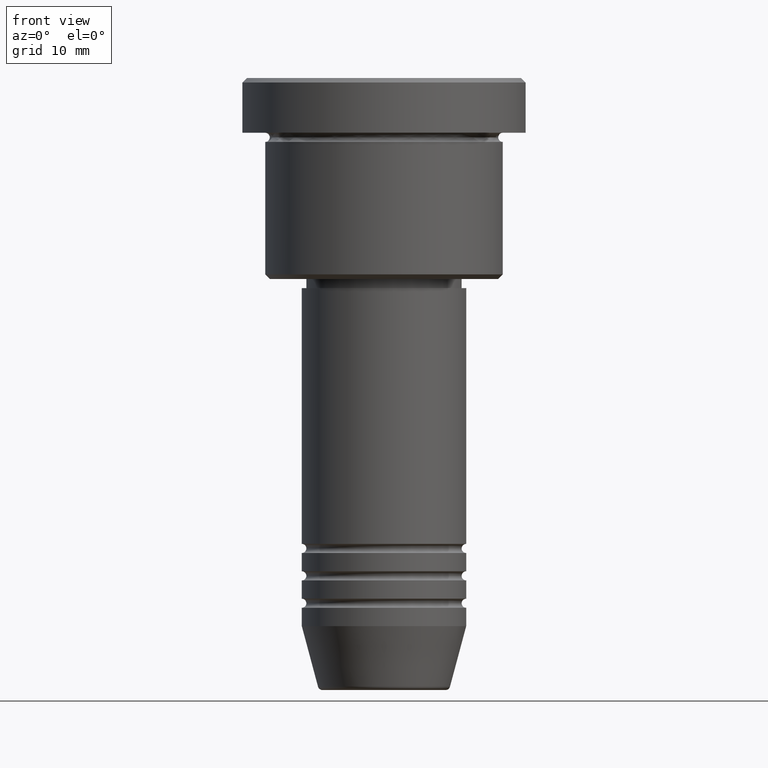
[diagram: clean part render]
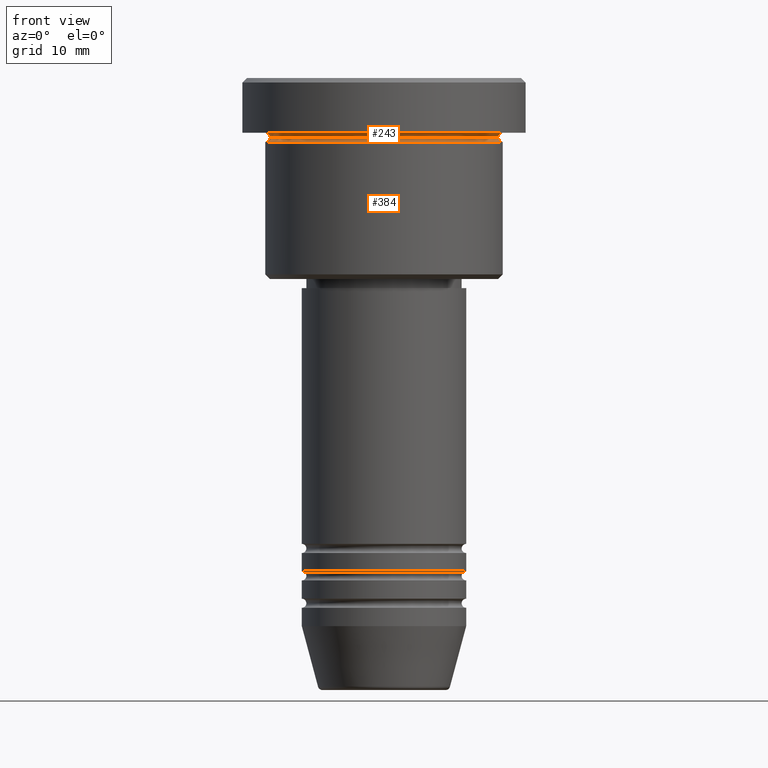
[diagram: same view with one multi-face feature highlighted, each face labeled with its STEP entity id]
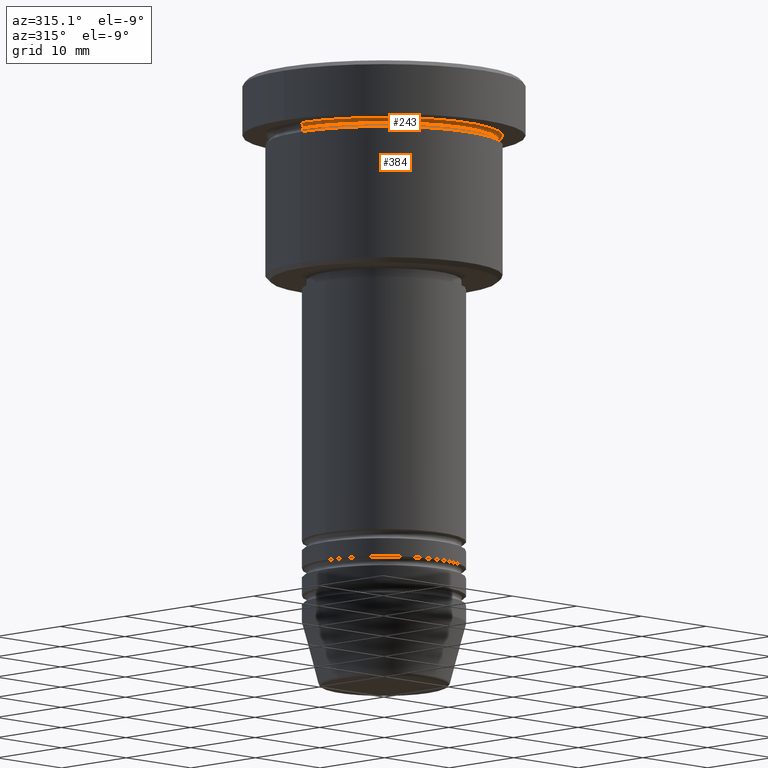
[diagram: same view with one multi-face feature highlighted, each face labeled with its STEP entity id]
A machine part, front view. The highlighted faces form ONE feature: a constant-radius fillet chain: 2 tangent blend faces with common blend radius 0.5 mm. The faces share edges in the B-rep.
A second angle (auxiliary view) of the same feature is appended — it is thin or edge-on in the first view.
Their STEP definitions:
[1] entity #243 (Torus):
#10 = CARTESIAN_POINT ( 'NONE',  ( 0.000000000000000000, 0.000000000000000000, -6.499999999999995559 ) ) ;
#21 = VERTEX_POINT ( 'NONE', #491 ) ;
#52 = AXIS2_PLACEMENT_3D ( 'NONE', #165, #79, #621 ) ;
#69 = FACE_OUTER_BOUND ( 'NONE', #612, .T. ) ;
#79 = DIRECTION ( 'NONE',  ( -0.000000000000000000, -0.000000000000000000, 1.000000000000000000 ) ) ;
#94 = CARTESIAN_POINT ( 'NONE',  ( 13.00000000000000000, 1.592040838891559095E-15, -5.999999999999994671 ) ) ;
#106 = DIRECTION ( 'NONE',  ( -1.000000000000000000, -1.224646799147353454E-16, 0.000000000000000000 ) ) ;
#165 = CARTESIAN_POINT ( 'NONE',  ( 0.000000000000000000, 0.000000000000000000, -5.999999999999995559 ) ) ;
#223 = CARTESIAN_POINT ( 'NONE',  ( -13.00000000000000000, 0.000000000000000000, -5.999999999999994671 ) ) ;
#243 = ADVANCED_FACE ( 'NONE', ( #69 ), #849, .F. ) ;
#325 = EDGE_CURVE ( 'NONE', #21, #839, #1113, .T. ) ;
#371 = DIRECTION ( 'NONE',  ( -0.000000000000000000, -0.000000000000000000, 1.000000000000000000 ) ) ;
#391 = CIRCLE ( 'NONE', #675, 12.49999999999999822 ) ;
#417 = EDGE_CURVE ( 'NONE', #928, #21, #391, .T. ) ;
#473 = ORIENTED_EDGE ( 'NONE', *, *, #724, .F. ) ;
#491 = CARTESIAN_POINT ( 'NONE',  ( 12.49999999999999822, 0.000000000000000000, -6.499999999999995559 ) ) ;
#534 = CARTESIAN_POINT ( 'NONE',  ( 0.000000000000000000, 0.000000000000000000, -6.499999999999995559 ) ) ;
#561 = AXIS2_PLACEMENT_3D ( 'NONE', #1105, #847, #106 ) ;
#610 = DIRECTION ( 'NONE',  ( 0.000000000000000000, 0.000000000000000000, -1.000000000000000000 ) ) ;
#611 = ORIENTED_EDGE ( 'NONE', *, *, #417, .T. ) ;
#612 = EDGE_LOOP ( 'NONE', ( #611, #1057, #887, #473 ) ) ;
#621 = DIRECTION ( 'NONE',  ( -1.000000000000000000, 0.000000000000000000, 0.000000000000000000 ) ) ;
#675 = AXIS2_PLACEMENT_3D ( 'NONE', #10, #371, #1045 ) ;
#705 = DIRECTION ( 'NONE',  ( -0.000000000000000000, -1.000000000000000000, -0.000000000000000000 ) ) ;
#724 = EDGE_CURVE ( 'NONE', #928, #956, #1040, .T. ) ;
#739 = EDGE_CURVE ( 'NONE', #956, #839, #1017, .T. ) ;
#839 = VERTEX_POINT ( 'NONE', #94 ) ;
#847 = DIRECTION ( 'NONE',  ( -1.224646799147353207E-16, 1.000000000000000000, 0.000000000000000000 ) ) ;
#849 = TOROIDAL_SURFACE ( 'NONE', #932, 13.00000000000000000, 0.5000000000000000000 ) ;
#887 = ORIENTED_EDGE ( 'NONE', *, *, #739, .F. ) ;
#903 = DIRECTION ( 'NONE',  ( -1.000000000000000000, 0.000000000000000000, 0.000000000000000000 ) ) ;
#928 = VERTEX_POINT ( 'NONE', #1115 ) ;
#932 = AXIS2_PLACEMENT_3D ( 'NONE', #534, #989, #903 ) ;
#956 = VERTEX_POINT ( 'NONE', #223 ) ;
#989 = DIRECTION ( 'NONE',  ( 0.000000000000000000, 0.000000000000000000, -1.000000000000000000 ) ) ;
#1004 = AXIS2_PLACEMENT_3D ( 'NONE', #1166, #705, #610 ) ;
#1017 = CIRCLE ( 'NONE', #52, 13.00000000000000000 ) ;
#1040 = CIRCLE ( 'NONE', #1004, 0.5000000000000004441 ) ;
#1045 = DIRECTION ( 'NONE',  ( 1.000000000000000000, 0.000000000000000000, 0.000000000000000000 ) ) ;
#1057 = ORIENTED_EDGE ( 'NONE', *, *, #325, .T. ) ;
#1105 = CARTESIAN_POINT ( 'NONE',  ( 13.00000000000000000, 1.592040838891559095E-15, -6.499999999999995559 ) ) ;
#1113 = CIRCLE ( 'NONE', #561, 0.5000000000000004441 ) ;
#1115 = CARTESIAN_POINT ( 'NONE',  ( -12.49999999999999822, 1.561424668912875308E-15, -6.499999999999995559 ) ) ;
#1166 = CARTESIAN_POINT ( 'NONE',  ( -13.00000000000000000, 0.000000000000000000, -6.499999999999995559 ) ) ;
[2] entity #384 (Torus):
#10 = CARTESIAN_POINT ( 'NONE',  ( 0.000000000000000000, 0.000000000000000000, -6.499999999999995559 ) ) ;
#21 = VERTEX_POINT ( 'NONE', #491 ) ;
#29 = CARTESIAN_POINT ( 'NONE',  ( 13.00000000000000000, 0.000000000000000000, -6.499999999999995559 ) ) ;
#38 = CARTESIAN_POINT ( 'NONE',  ( 13.00000000000000000, 0.000000000000000000, -6.999999999999995559 ) ) ;
#132 = DIRECTION ( 'NONE',  ( 0.000000000000000000, 0.000000000000000000, -1.000000000000000000 ) ) ;
#184 = TOROIDAL_SURFACE ( 'NONE', #1003, 13.00000000000000000, 0.5000000000000000000 ) ;
#185 = DIRECTION ( 'NONE',  ( -0.000000000000000000, -0.000000000000000000, 1.000000000000000000 ) ) ;
#196 = DIRECTION ( 'NONE',  ( 1.000000000000000000, 0.000000000000000000, 0.000000000000000000 ) ) ;
#219 = AXIS2_PLACEMENT_3D ( 'NONE', #441, #802, #1068 ) ;
#221 = CIRCLE ( 'NONE', #934, 0.5000000000000004441 ) ;
#232 = DIRECTION ( 'NONE',  ( 0.000000000000000000, -1.000000000000000000, 0.000000000000000000 ) ) ;
#254 = EDGE_CURVE ( 'NONE', #673, #455, #713, .T. ) ;
#270 = CARTESIAN_POINT ( 'NONE',  ( 0.000000000000000000, 0.000000000000000000, -6.499999999999995559 ) ) ;
#341 = EDGE_LOOP ( 'NONE', ( #1111, #780, #519, #1067 ) ) ;
#354 = AXIS2_PLACEMENT_3D ( 'NONE', #532, #971, #881 ) ;
#371 = DIRECTION ( 'NONE',  ( -0.000000000000000000, -0.000000000000000000, 1.000000000000000000 ) ) ;
#384 = ADVANCED_FACE ( 'NONE', ( #734 ), #184, .F. ) ;
#391 = CIRCLE ( 'NONE', #675, 12.49999999999999822 ) ;
#417 = EDGE_CURVE ( 'NONE', #928, #21, #391, .T. ) ;
#441 = CARTESIAN_POINT ( 'NONE',  ( 0.000000000000000000, 0.000000000000000000, -6.999999999999995559 ) ) ;
#455 = VERTEX_POINT ( 'NONE', #38 ) ;
#491 = CARTESIAN_POINT ( 'NONE',  ( 12.49999999999999822, 0.000000000000000000, -6.499999999999995559 ) ) ;
#519 = ORIENTED_EDGE ( 'NONE', *, *, #254, .T. ) ;
#532 = CARTESIAN_POINT ( 'NONE',  ( -13.00000000000000000, 1.592040838891559095E-15, -6.499999999999995559 ) ) ;
#673 = VERTEX_POINT ( 'NONE', #1148 ) ;
#675 = AXIS2_PLACEMENT_3D ( 'NONE', #10, #371, #1045 ) ;
#713 = CIRCLE ( 'NONE', #219, 13.00000000000000000 ) ;
#734 = FACE_OUTER_BOUND ( 'NONE', #341, .T. ) ;
#778 = CIRCLE ( 'NONE', #354, 0.5000000000000004441 ) ;
#780 = ORIENTED_EDGE ( 'NONE', *, *, #1117, .T. ) ;
#802 = DIRECTION ( 'NONE',  ( -0.000000000000000000, -0.000000000000000000, 1.000000000000000000 ) ) ;
#881 = DIRECTION ( 'NONE',  ( -1.000000000000000000, 1.224646799147353454E-16, 0.000000000000000000 ) ) ;
#920 = EDGE_CURVE ( 'NONE', #21, #455, #221, .T. ) ;
#928 = VERTEX_POINT ( 'NONE', #1115 ) ;
#934 = AXIS2_PLACEMENT_3D ( 'NONE', #29, #232, #132 ) ;
#971 = DIRECTION ( 'NONE',  ( 1.224646799147353207E-16, 1.000000000000000000, 0.000000000000000000 ) ) ;
#1003 = AXIS2_PLACEMENT_3D ( 'NONE', #270, #185, #196 ) ;
#1045 = DIRECTION ( 'NONE',  ( 1.000000000000000000, 0.000000000000000000, 0.000000000000000000 ) ) ;
#1067 = ORIENTED_EDGE ( 'NONE', *, *, #920, .F. ) ;
#1068 = DIRECTION ( 'NONE',  ( 1.000000000000000000, 0.000000000000000000, 0.000000000000000000 ) ) ;
#1111 = ORIENTED_EDGE ( 'NONE', *, *, #417, .F. ) ;
#1115 = CARTESIAN_POINT ( 'NONE',  ( -12.49999999999999822, 1.561424668912875308E-15, -6.499999999999995559 ) ) ;
#1117 = EDGE_CURVE ( 'NONE', #928, #673, #778, .T. ) ;
#1148 = CARTESIAN_POINT ( 'NONE',  ( -13.00000000000000000, 1.592040838891559095E-15, -6.999999999999995559 ) ) ;